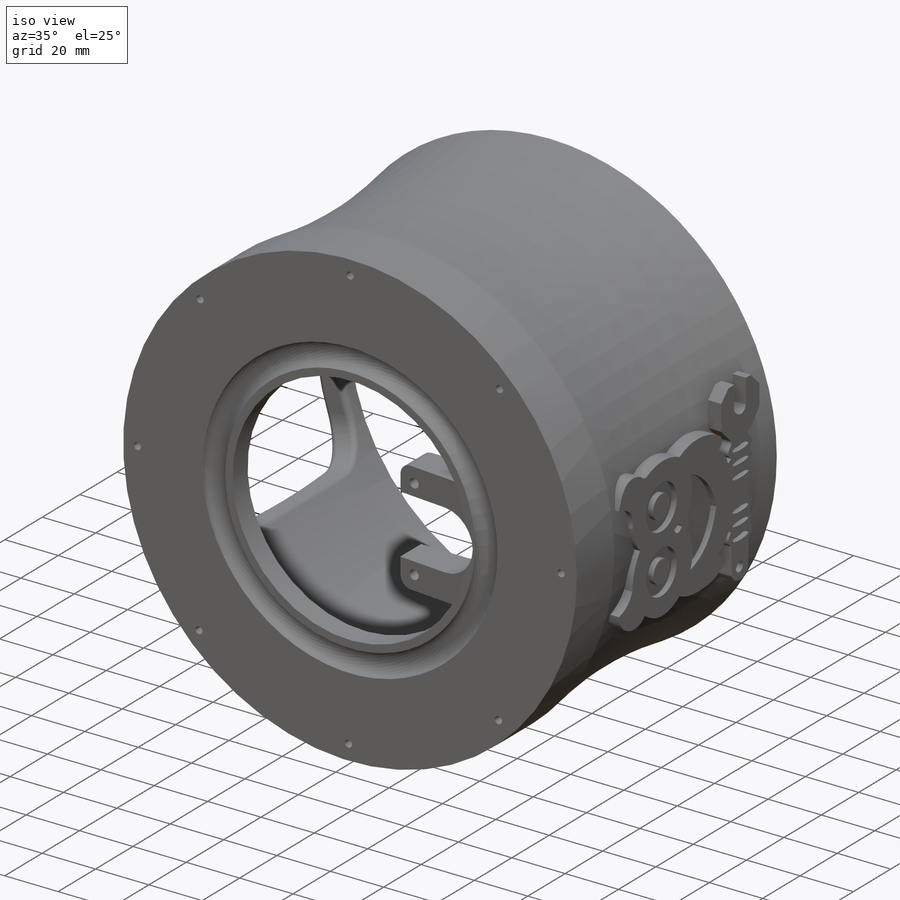
[diagram: iso view]
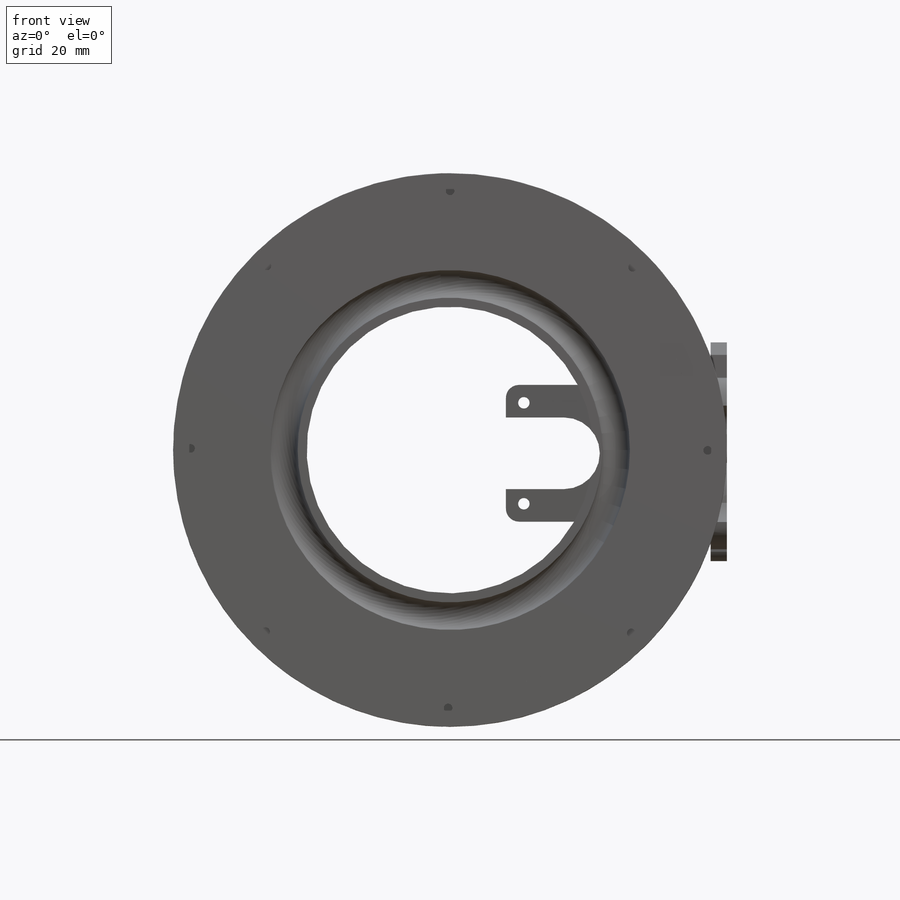
[diagram: front view]
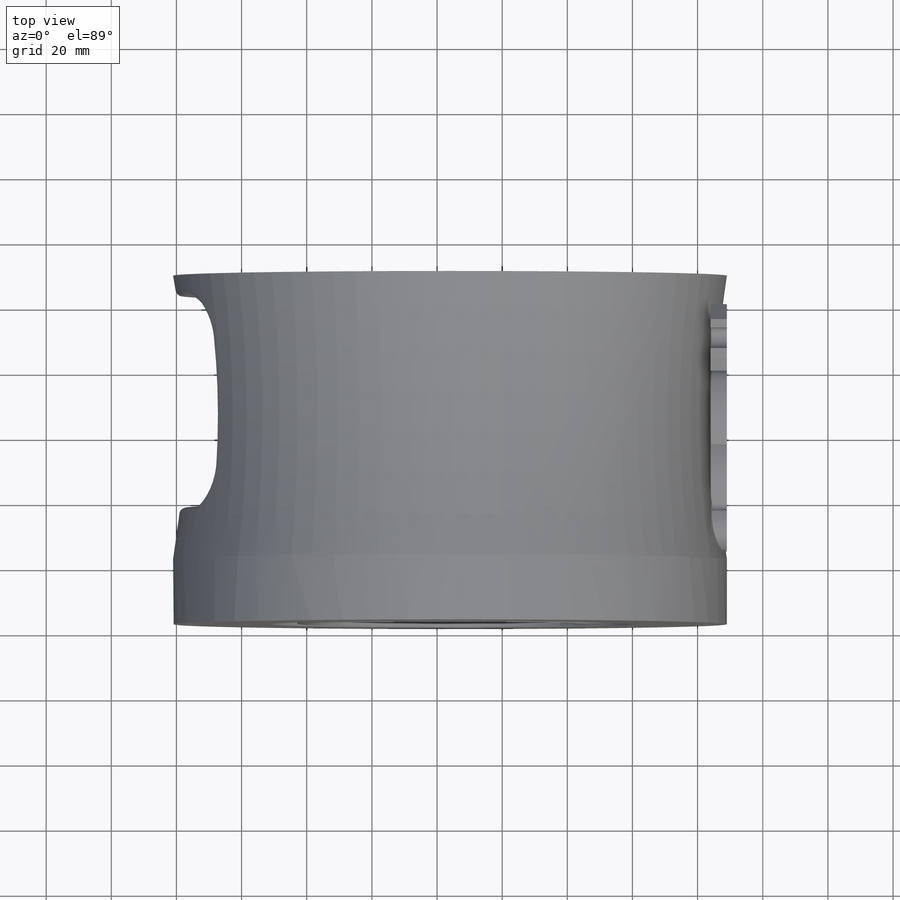
[diagram: top view]
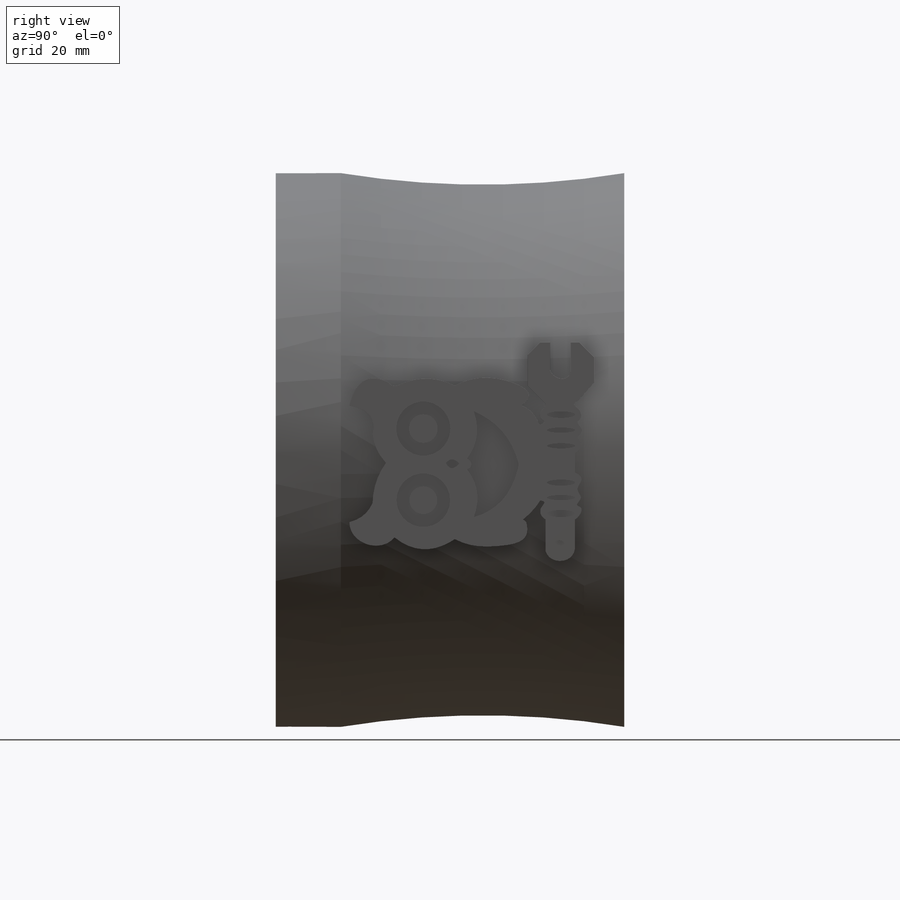
[diagram: right view]
SOLIDWORKS PART (.sldprt)
format: sldprt  version: not decoded by parser v0  size: 1,331,712 bytes
history: native  units: mm
features: sketch x17, cut_extrude x11, plane x6, extrude x4, fillet x3, cut_revolve x2, revolve x2, pattern_circular x2, material x1 (+10 scaffold rows collapsed)
feature tree (58):
  scaffold x10  (default folders/planes/origin — collapsed)
  material  "Material <not specified>"
  plane  "Płaszczyzna przednia"
  plane  "Płaszczyzna górna"
  plane  "Płaszczyzna prawa"
  plane  "Płaszczyzna4"  Offset=2mm
  sketch  "Szkic2"  dims[c1.D1=160.0mm c1.D2=90.0mm c2.D1=170.0mm c2.D2=88.0mm]
  extrude  "Dodanie-wyciągnięcie1"  Depth=20mm
  sketch  "Szkic7"  dims[D1=43.0mm D2=25.0mm]
  cut_extrude  "Wytnij-wyciągnięcie1"  [1 undecoded]
  sketch  "Szkic8"  dims[D1=11.0mm]
  extrude  "Dodanie-wyciągnięcie2"  [1 undecoded]
  sketch  "Szkic4"
  cut_revolve  "Wycięcie-obrót3"  Angle=360deg
  cut_revolve  "Wycięcie-obrót4"  [1 undecoded]
  sketch  "Szkic4<2>"  dims[D1=360.0deg]
  fillet  "Zaokrąglenie2"  Radius=4mm
  sketch  "Szkic11"  dims[D2=3.5mm D1=0.0mm]
  cut_extrude  "Wytnij-wyciągnięcie3"  [1 undecoded]
  extrude  "Oś2"  [1 undecoded]
  plane  "Płaszczyzna5"
  sketch  "Szkic12"  dims[D1=11.0mm D2=1.0mm]
  cut_extrude  "Wytnij-wyciągnięcie5"  [1 undecoded]
  sketch  "Szkic14"  dims[D1=10.0mm D2=87.0mm]
  revolve  "Obrót2"  Angle=360deg
  sketch  "Szkic15"  dims[D1=2.65mm]
  cut_extrude  "Wytnij-wyciągnięcie6"  Depth=10mm
  sketch  "Szkic16"  dims[D1=76.0mm D2=65.0mm]
  cut_extrude  "Wytnij-wyciągnięcie7"  [1 undecoded]
  sketch  "Szkic17"  dims[D1=2.65mm]
  cut_extrude  "Wytnij-wyciągnięcie8"  Depth=20mm
  fillet  "Zaokrąglenie3"  Radius=13mm
  plane  "Płaszczyzna6"
  sketch  "Szkic18"  dims[D1=3.0mm]
  sketch  "Szkic19"
  cut_extrude  "Wytnij-wyciągnięcie10"  Depth=12mm
  fillet  "Zaokrąglenie4"  Radius=2mm
  sketch  "Szkic20"  dims[c1.D1=~4.830372mm c2.D1=30.0deg c2.D2=4.0mm c2.D3=75.0mm c2.D4=~3.535534mm c3.D4=120.0deg c3.D6=3.0mm c3.D8=3.0mm c3.D10=~23.892894mm c3.D1=~2.991644mm c3.D5=6.0 c3.D7=5.0 c3.D9=4.0 c4.D4=3.0]
  cut_extrude  "Wytnij-wyciągnięcie11"  [1 undecoded]
  sketch  "Szkic21"  dims[D1=6.0mm D2=3.0 D3=4.0]
  cut_extrude  "Wytnij-wyciągnięcie13"  [1 undecoded]
  sketch  "Szkic22"  dims[D1=6.0mm D2=4.0 D3=3.0]
  cut_extrude  "Wytnij-wyciągnięcie14"  [1 undecoded]
  pattern_circular  "Szyk kołowy1"  Count=2 Angle=12deg
  pattern_circular  "Szyk kołowy2"  Count=2 Angle=12deg
  extrude  "Boss-Extrude1"  Depth=5mm
  sketch  "Sketch1"
  revolve  "Sketch Picture2"  [1 undecoded]
  cut_extrude  "Cut-Extrude3"  Depth=2mm
decode coverage: 27 of 41 modeling features carry decoded parameters
note: ~ marks probable driven/reference dimensions
note: 11 parameter values undecoded
summary: no parameter record found for 11 features
note: suppression state not decoded; provenance and decode notes live in map.json
